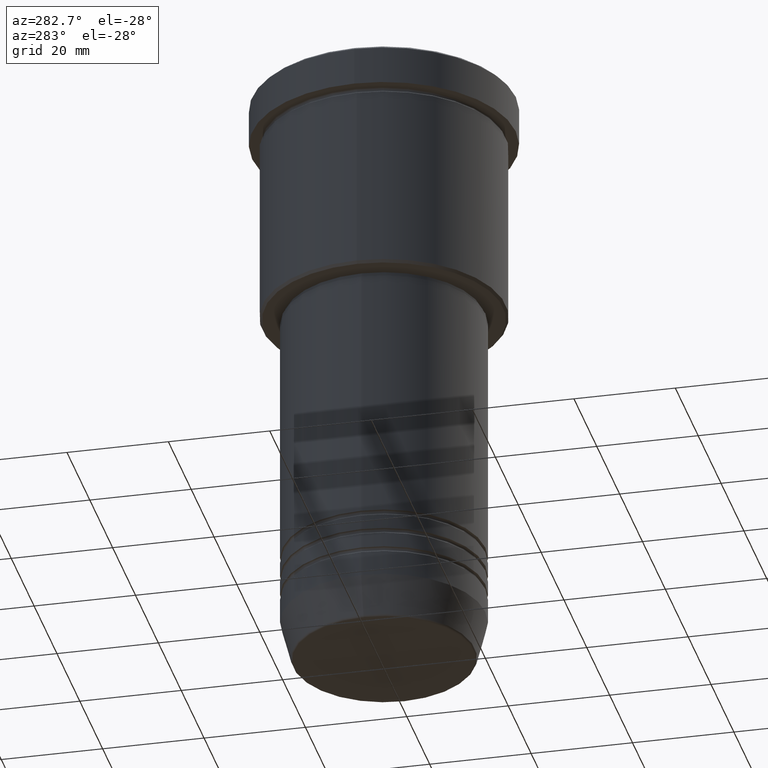
[diagram: clean part render]
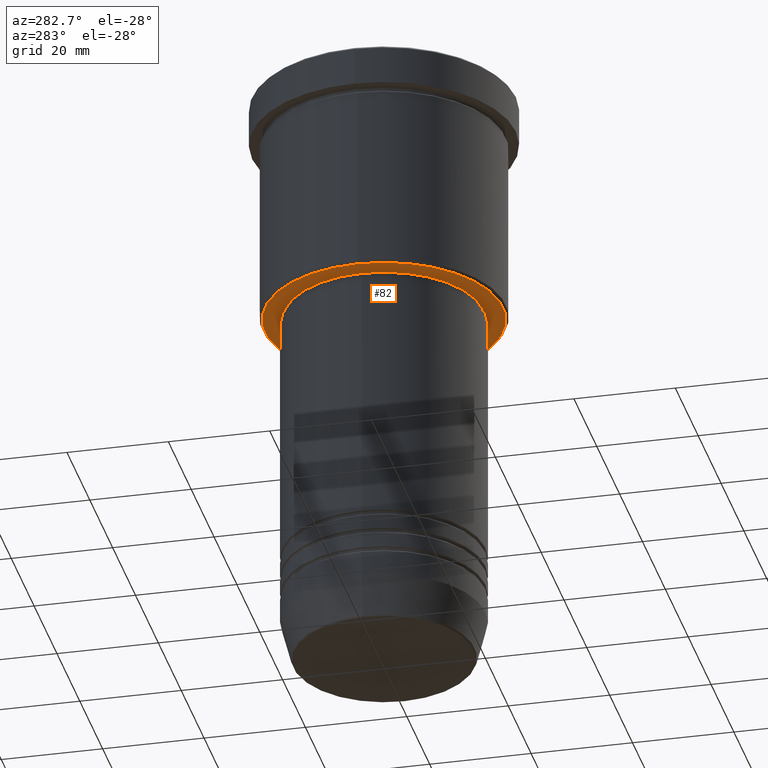
[diagram: same view with one face highlighted and labeled with its STEP entity id]
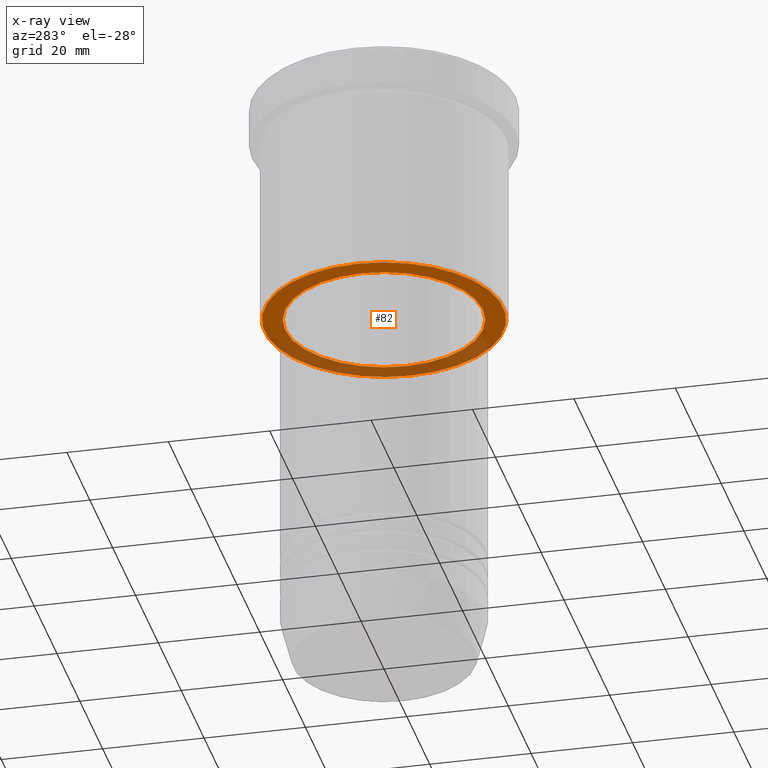
[diagram: x-ray of the same camera — body ghosted, the highlighted face saturated]
A machine part, auxiliary view. The second image highlights one B-rep face of the part: STEP entity #82.
The next image is the same camera in x-ray: the body ghosted, the highlighted face saturated — about 36% of this face is hidden behind the body in this view.
In plain terms, the highlighted planar face has unit normal (0, 0, -1).
Its self-contained STEP definition (entity closure, byte-faithful):
#23 = CARTESIAN_POINT ( 'NONE',  ( 0.000000000000000000, 0.000000000000000000, -46.00000000000000711 ) ) ;
#53 = DIRECTION ( 'NONE',  ( 0.000000000000000000, 0.000000000000000000, -1.000000000000000000 ) ) ;
#63 = VERTEX_POINT ( 'NONE', #1014 ) ;
#70 = DIRECTION ( 'NONE',  ( 0.000000000000000000, 0.000000000000000000, -1.000000000000000000 ) ) ;
#82 = ADVANCED_FACE ( 'NONE', ( #541, #925 ), #1182, .T. ) ;
#96 = CARTESIAN_POINT ( 'NONE',  ( 0.000000000000000000, 24.00000000000000000, -46.00000000000000000 ) ) ;
#108 = CIRCLE ( 'NONE', #510, 23.50000000000000355 ) ;
#132 = ORIENTED_EDGE ( 'NONE', *, *, #172, .T. ) ;
#139 = AXIS2_PLACEMENT_3D ( 'NONE', #96, #641, #1010 ) ;
#159 = CARTESIAN_POINT ( 'NONE',  ( 0.000000000000000000, 0.000000000000000000, -46.00000000000000000 ) ) ;
#172 = EDGE_CURVE ( 'NONE', #684, #752, #1001, .T. ) ;
#259 = CIRCLE ( 'NONE', #895, 19.50000000000000355 ) ;
#269 = EDGE_CURVE ( 'NONE', #514, #63, #797, .T. ) ;
#293 = DIRECTION ( 'NONE',  ( -0.000000000000000000, -0.000000000000000000, 1.000000000000000000 ) ) ;
#309 = CARTESIAN_POINT ( 'NONE',  ( 0.000000000000000000, 0.000000000000000000, -46.00000000000000000 ) ) ;
#316 = CARTESIAN_POINT ( 'NONE',  ( 19.50000000000000355, 0.000000000000000000, -46.00000000000000711 ) ) ;
#392 = DIRECTION ( 'NONE',  ( 1.000000000000000000, 0.000000000000000000, 0.000000000000000000 ) ) ;
#417 = DIRECTION ( 'NONE',  ( -1.000000000000000000, 0.000000000000000000, 0.000000000000000000 ) ) ;
#458 = ORIENTED_EDGE ( 'NONE', *, *, #823, .T. ) ;
#466 = EDGE_LOOP ( 'NONE', ( #1041, #132 ) ) ;
#499 = AXIS2_PLACEMENT_3D ( 'NONE', #23, #293, #392 ) ;
#510 = AXIS2_PLACEMENT_3D ( 'NONE', #159, #70, #529 ) ;
#514 = VERTEX_POINT ( 'NONE', #719 ) ;
#529 = DIRECTION ( 'NONE',  ( -1.000000000000000000, 0.000000000000000000, 0.000000000000000000 ) ) ;
#541 = FACE_OUTER_BOUND ( 'NONE', #553, .T. ) ;
#553 = EDGE_LOOP ( 'NONE', ( #458, #958 ) ) ;
#560 = AXIS2_PLACEMENT_3D ( 'NONE', #309, #53, #417 ) ;
#641 = DIRECTION ( 'NONE',  ( 0.000000000000000000, 0.000000000000000000, -1.000000000000000000 ) ) ;
#656 = EDGE_CURVE ( 'NONE', #752, #684, #259, .T. ) ;
#684 = VERTEX_POINT ( 'NONE', #1138 ) ;
#719 = CARTESIAN_POINT ( 'NONE',  ( -23.50000000000000355, 2.908536147974964502E-15, -46.00000000000000000 ) ) ;
#743 = DIRECTION ( 'NONE',  ( 1.000000000000000000, 0.000000000000000000, 0.000000000000000000 ) ) ;
#752 = VERTEX_POINT ( 'NONE', #316 ) ;
#797 = CIRCLE ( 'NONE', #560, 23.50000000000000355 ) ;
#823 = EDGE_CURVE ( 'NONE', #63, #514, #108, .T. ) ;
#830 = DIRECTION ( 'NONE',  ( -0.000000000000000000, -0.000000000000000000, 1.000000000000000000 ) ) ;
#895 = AXIS2_PLACEMENT_3D ( 'NONE', #1032, #830, #743 ) ;
#925 = FACE_BOUND ( 'NONE', #466, .T. ) ;
#958 = ORIENTED_EDGE ( 'NONE', *, *, #269, .T. ) ;
#1001 = CIRCLE ( 'NONE', #499, 19.50000000000000355 ) ;
#1010 = DIRECTION ( 'NONE',  ( -1.000000000000000000, 0.000000000000000000, -0.000000000000000000 ) ) ;
#1014 = CARTESIAN_POINT ( 'NONE',  ( 23.50000000000000355, 0.000000000000000000, -46.00000000000000000 ) ) ;
#1032 = CARTESIAN_POINT ( 'NONE',  ( 0.000000000000000000, 0.000000000000000000, -46.00000000000000711 ) ) ;
#1041 = ORIENTED_EDGE ( 'NONE', *, *, #656, .T. ) ;
#1138 = CARTESIAN_POINT ( 'NONE',  ( -19.50000000000000355, 2.388061258337339333E-15, -46.00000000000000711 ) ) ;
#1182 = PLANE ( 'NONE',  #139 ) ;